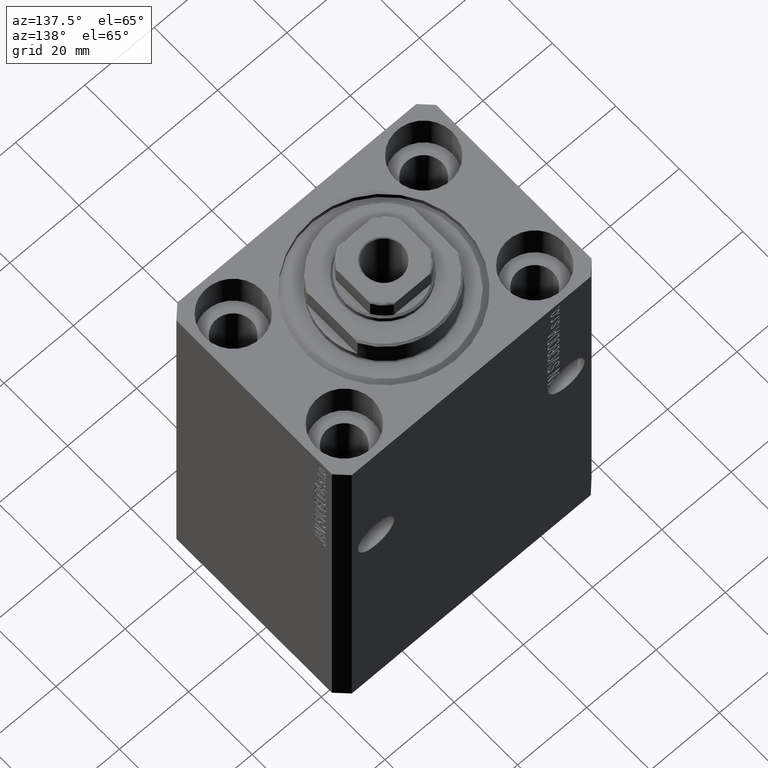
[diagram: clean part render]
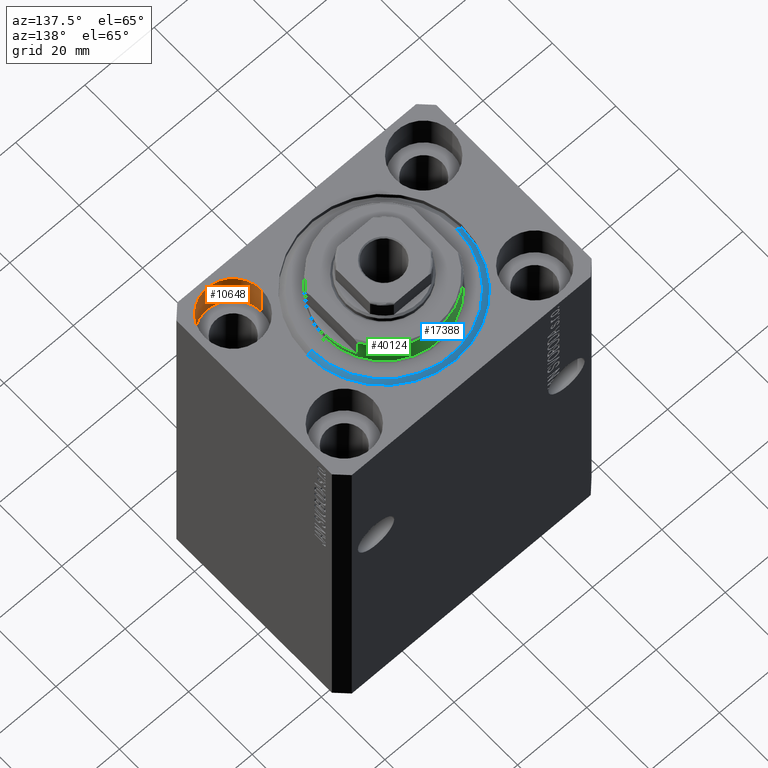
[diagram: same view with three faces highlighted in distinct colors, each labeled with its STEP entity id]
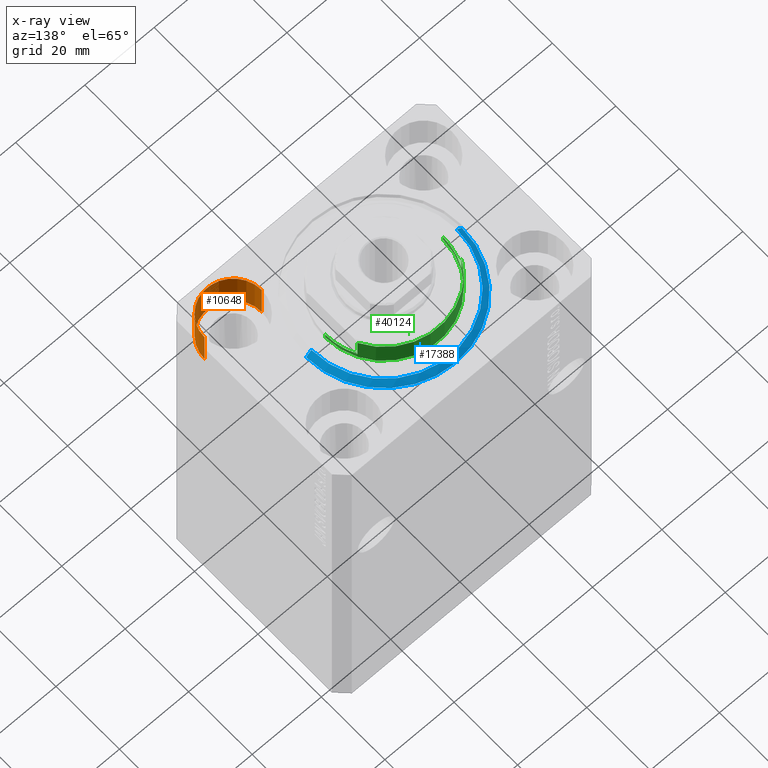
[diagram: x-ray of the same camera — body ghosted, the three highlighted faces saturated]
A machine part, auxiliary view with three faces highlighted in distinct colors.
The next image is the same camera in x-ray (body ghosted, the three faces saturated) — at least one of them is partly hidden behind the body in this view.
Their STEP definitions:

[orange] entity #10648 — the highlighted cylindrical surface (partial cylindrical patch) has radius 8.25 mm, axis along (0, 0, 1).
#373 = CARTESIAN_POINT ( 'NONE',  ( 27.50000000000000355, -17.50000000000000000, 0.000000000000000000 ) ) ;
#1655 = EDGE_CURVE ( 'NONE', #12537, #13945, #39522, .T. ) ;
#2427 = VECTOR ( 'NONE', #12998, 1000.000000000000000 ) ;
#4715 = CARTESIAN_POINT ( 'NONE',  ( 19.25000000000000000, -17.50000000000000000, 0.000000000000000000 ) ) ;
#5429 = DIRECTION ( 'NONE',  ( 1.000000000000000000, 0.000000000000000000, 0.000000000000000000 ) ) ;
#5968 = EDGE_CURVE ( 'NONE', #8845, #12537, #35969, .T. ) ;
#6167 = VERTEX_POINT ( 'NONE', #4715 ) ;
#6812 = CARTESIAN_POINT ( 'NONE',  ( 35.75000000000000711, -17.50000000000000000, 0.000000000000000000 ) ) ;
#6892 = CARTESIAN_POINT ( 'NONE',  ( 19.25000000000000000, -17.50000000000000000, -11.00000000000000000 ) ) ;
#7341 = LINE ( 'NONE', #6892, #24799 ) ;
#8845 = VERTEX_POINT ( 'NONE', #38775 ) ;
#10648 = ADVANCED_FACE ( 'NONE', ( #24062 ), #27413, .F. ) ;
#10656 = ORIENTED_EDGE ( 'NONE', *, *, #39236, .T. ) ;
#12195 = CIRCLE ( 'NONE', #37118, 8.250000000000000000 ) ;
#12537 = VERTEX_POINT ( 'NONE', #15558 ) ;
#12998 = DIRECTION ( 'NONE',  ( -0.000000000000000000, -0.000000000000000000, 1.000000000000000000 ) ) ;
#13945 = VERTEX_POINT ( 'NONE', #6812 ) ;
#15558 = CARTESIAN_POINT ( 'NONE',  ( 35.75000000000000711, -17.50000000000000000, -11.00000000000000000 ) ) ;
#15867 = ORIENTED_EDGE ( 'NONE', *, *, #5968, .F. ) ;
#16759 = AXIS2_PLACEMENT_3D ( 'NONE', #39293, #35958, #5429 ) ;
#17308 = EDGE_CURVE ( 'NONE', #8845, #6167, #7341, .T. ) ;
#23179 = AXIS2_PLACEMENT_3D ( 'NONE', #40977, #39790, #38304 ) ;
#24062 = FACE_OUTER_BOUND ( 'NONE', #38453, .T. ) ;
#24799 = VECTOR ( 'NONE', #43867, 1000.000000000000000 ) ;
#27356 = DIRECTION ( 'NONE',  ( 1.000000000000000000, 0.000000000000000000, 0.000000000000000000 ) ) ;
#27413 = CYLINDRICAL_SURFACE ( 'NONE', #23179, 8.250000000000000000 ) ;
#31754 = ORIENTED_EDGE ( 'NONE', *, *, #1655, .F. ) ;
#35958 = DIRECTION ( 'NONE',  ( 0.000000000000000000, 0.000000000000000000, 1.000000000000000000 ) ) ;
#35969 = CIRCLE ( 'NONE', #16759, 8.250000000000000000 ) ;
#37118 = AXIS2_PLACEMENT_3D ( 'NONE', #373, #41363, #27356 ) ;
#38304 = DIRECTION ( 'NONE',  ( 1.000000000000000000, 0.000000000000000000, 0.000000000000000000 ) ) ;
#38453 = EDGE_LOOP ( 'NONE', ( #15867, #43483, #10656, #31754 ) ) ;
#38775 = CARTESIAN_POINT ( 'NONE',  ( 19.25000000000000000, -17.50000000000000000, -11.00000000000000000 ) ) ;
#39236 = EDGE_CURVE ( 'NONE', #6167, #13945, #12195, .T. ) ;
#39293 = CARTESIAN_POINT ( 'NONE',  ( 27.50000000000000355, -17.50000000000000000, -11.00000000000000000 ) ) ;
#39522 = LINE ( 'NONE', #39965, #2427 ) ;
#39790 = DIRECTION ( 'NONE',  ( -0.000000000000000000, -0.000000000000000000, 1.000000000000000000 ) ) ;
#39965 = CARTESIAN_POINT ( 'NONE',  ( 35.75000000000000711, -17.50000000000000000, -11.00000000000000000 ) ) ;
#40977 = CARTESIAN_POINT ( 'NONE',  ( 27.50000000000000355, -17.50000000000000000, -11.00000000000000000 ) ) ;
#41363 = DIRECTION ( 'NONE',  ( 0.000000000000000000, 0.000000000000000000, 1.000000000000000000 ) ) ;
#43483 = ORIENTED_EDGE ( 'NONE', *, *, #17308, .T. ) ;
#43867 = DIRECTION ( 'NONE',  ( -0.000000000000000000, -0.000000000000000000, 1.000000000000000000 ) ) ;

[blue] entity #17388 — the highlighted conical surface has half-angle 45 deg.
#7040 = VERTEX_POINT ( 'NONE', #18853 ) ;
#7476 = DIRECTION ( 'NONE',  ( -0.000000000000000000, -0.000000000000000000, 1.000000000000000000 ) ) ;
#8439 = CONICAL_SURFACE ( 'NONE', #9880, 22.50000000000000355, 0.7853981633974517207 ) ;
#8962 = CIRCLE ( 'NONE', #33850, 20.99999999999995381 ) ;
#9880 = AXIS2_PLACEMENT_3D ( 'NONE', #32247, #14882, #21583 ) ;
#10158 = EDGE_CURVE ( 'NONE', #40332, #24697, #38843, .T. ) ;
#10390 = AXIS2_PLACEMENT_3D ( 'NONE', #13918, #7476, #21056 ) ;
#10825 = EDGE_CURVE ( 'NONE', #14719, #7040, #8962, .T. ) ;
#13656 = EDGE_LOOP ( 'NONE', ( #17242, #42951, #40784, #35019 ) ) ;
#13918 = CARTESIAN_POINT ( 'NONE',  ( 0.000000000000000000, 0.000000000000000000, 1.500000000000039524 ) ) ;
#14719 = VERTEX_POINT ( 'NONE', #29574 ) ;
#14882 = DIRECTION ( 'NONE',  ( -0.000000000000000000, -0.000000000000000000, 1.000000000000000000 ) ) ;
#17242 = ORIENTED_EDGE ( 'NONE', *, *, #10825, .F. ) ;
#17388 = ADVANCED_FACE ( 'NONE', ( #28928 ), #8439, .T. ) ;
#17944 = CARTESIAN_POINT ( 'NONE',  ( 0.000000000000000000, 0.000000000000000000, 0.000000000000000000 ) ) ;
#17969 = CARTESIAN_POINT ( 'NONE',  ( 22.50000000000000355, 2.755455298081544383E-15, 1.500000000000039524 ) ) ;
#18853 = CARTESIAN_POINT ( 'NONE',  ( 20.99999999999995381, 0.000000000000000000, 0.000000000000000000 ) ) ;
#21056 = DIRECTION ( 'NONE',  ( 1.000000000000000000, 0.000000000000000000, 0.000000000000000000 ) ) ;
#21583 = DIRECTION ( 'NONE',  ( 1.000000000000000000, 0.000000000000000000, 0.000000000000000000 ) ) ;
#22133 = VECTOR ( 'NONE', #39381, 1000.000000000000114 ) ;
#22232 = LINE ( 'NONE', #35604, #42688 ) ;
#24697 = VERTEX_POINT ( 'NONE', #34772 ) ;
#25809 = CARTESIAN_POINT ( 'NONE',  ( 22.50000000000000355, 0.000000000000000000, 1.500000000000039524 ) ) ;
#28927 = LINE ( 'NONE', #25809, #22133 ) ;
#28928 = FACE_OUTER_BOUND ( 'NONE', #13656, .T. ) ;
#29574 = CARTESIAN_POINT ( 'NONE',  ( -20.99999999999995381, 2.663606788145490261E-15, 0.000000000000000000 ) ) ;
#32247 = CARTESIAN_POINT ( 'NONE',  ( 0.000000000000000000, 0.000000000000000000, 1.500000000000039524 ) ) ;
#32522 = EDGE_CURVE ( 'NONE', #14719, #24697, #22232, .T. ) ;
#32918 = DIRECTION ( 'NONE',  ( -0.7071067811865500152, 8.659560562354962440E-17, 0.7071067811865451302 ) ) ;
#33850 = AXIS2_PLACEMENT_3D ( 'NONE', #17944, #38638, #34435 ) ;
#34435 = DIRECTION ( 'NONE',  ( 1.000000000000000000, 0.000000000000000000, 0.000000000000000000 ) ) ;
#34772 = CARTESIAN_POINT ( 'NONE',  ( -22.50000000000000355, 0.000000000000000000, 1.500000000000039524 ) ) ;
#35019 = ORIENTED_EDGE ( 'NONE', *, *, #38132, .F. ) ;
#35604 = CARTESIAN_POINT ( 'NONE',  ( -22.50000000000000355, 2.755455298081545172E-15, 1.500000000000039524 ) ) ;
#38132 = EDGE_CURVE ( 'NONE', #7040, #40332, #28927, .T. ) ;
#38638 = DIRECTION ( 'NONE',  ( -0.000000000000000000, -0.000000000000000000, -1.000000000000000000 ) ) ;
#38843 = CIRCLE ( 'NONE', #10390, 22.50000000000000355 ) ;
#39381 = DIRECTION ( 'NONE',  ( 0.7071067811865500152, 0.000000000000000000, 0.7071067811865451302 ) ) ;
#40332 = VERTEX_POINT ( 'NONE', #17969 ) ;
#40784 = ORIENTED_EDGE ( 'NONE', *, *, #10158, .F. ) ;
#42688 = VECTOR ( 'NONE', #32918, 1000.000000000000114 ) ;
#42951 = ORIENTED_EDGE ( 'NONE', *, *, #32522, .T. ) ;

[green] entity #40124 — the highlighted cylindrical surface (partial cylindrical patch) has radius 17 mm, axis along (0, 0, -1).
#99 = AXIS2_PLACEMENT_3D ( 'NONE', #25774, #15286, #29338 ) ;
#400 = VERTEX_POINT ( 'NONE', #41871 ) ;
#539 = CARTESIAN_POINT ( 'NONE',  ( -15.00000000000000000, 8.000000000000001776, -7.500000000000013323 ) ) ;
#916 = FACE_OUTER_BOUND ( 'NONE', #28595, .T. ) ;
#920 = VERTEX_POINT ( 'NONE', #40451 ) ;
#1377 = VECTOR ( 'NONE', #41481, 1000.000000000000000 ) ;
#1797 = CARTESIAN_POINT ( 'NONE',  ( -17.00000000000000000, 2.081899558550500280E-15, -2.000000000000000000 ) ) ;
#3306 = VECTOR ( 'NONE', #40277, 1000.000000000000000 ) ;
#3353 = DIRECTION ( 'NONE',  ( 0.000000000000000000, 0.000000000000000000, 1.000000000000000000 ) ) ;
#6105 = AXIS2_PLACEMENT_3D ( 'NONE', #8214, #42282, #11763 ) ;
#6693 = CARTESIAN_POINT ( 'NONE',  ( 17.00000000000000000, 0.000000000000000000, -0.5000000000000004441 ) ) ;
#6710 = ORIENTED_EDGE ( 'NONE', *, *, #30021, .F. ) ;
#8214 = CARTESIAN_POINT ( 'NONE',  ( 0.000000000000000000, 0.000000000000000000, -2.000000000000000000 ) ) ;
#9227 = EDGE_CURVE ( 'NONE', #400, #15951, #14712, .T. ) ;
#9936 = ORIENTED_EDGE ( 'NONE', *, *, #9227, .F. ) ;
#11281 = AXIS2_PLACEMENT_3D ( 'NONE', #20087, #3353, #20744 ) ;
#11763 = DIRECTION ( 'NONE',  ( -1.000000000000000000, 0.000000000000000000, 0.000000000000000000 ) ) ;
#12502 = EDGE_CURVE ( 'NONE', #14764, #400, #39168, .T. ) ;
#13103 = CARTESIAN_POINT ( 'NONE',  ( -15.00000000000000000, 8.000000000000001776, -8.000000000000000000 ) ) ;
#13533 = EDGE_CURVE ( 'NONE', #27844, #15928, #27153, .T. ) ;
#14399 = CIRCLE ( 'NONE', #36446, 17.00000000000000000 ) ;
#14712 = CIRCLE ( 'NONE', #6105, 17.00000000000000000 ) ;
#14764 = VERTEX_POINT ( 'NONE', #19312 ) ;
#15286 = DIRECTION ( 'NONE',  ( 0.000000000000000000, 0.000000000000000000, -1.000000000000000000 ) ) ;
#15542 = ORIENTED_EDGE ( 'NONE', *, *, #18117, .T. ) ;
#15928 = VERTEX_POINT ( 'NONE', #24089 ) ;
#15951 = VERTEX_POINT ( 'NONE', #20526 ) ;
#18117 = EDGE_CURVE ( 'NONE', #14764, #27844, #41155, .T. ) ;
#18293 = CYLINDRICAL_SURFACE ( 'NONE', #31459, 17.00000000000000000 ) ;
#19312 = CARTESIAN_POINT ( 'NONE',  ( 15.00000000000000000, 8.000000000000001776, -7.500000000000013323 ) ) ;
#19902 = EDGE_CURVE ( 'NONE', #33272, #920, #34813, .T. ) ;
#20087 = CARTESIAN_POINT ( 'NONE',  ( 0.000000000000000000, 0.000000000000000000, -7.500000000000013323 ) ) ;
#20526 = CARTESIAN_POINT ( 'NONE',  ( 17.00000000000000000, 0.000000000000000000, -2.000000000000000000 ) ) ;
#20681 = ORIENTED_EDGE ( 'NONE', *, *, #12502, .F. ) ;
#20744 = DIRECTION ( 'NONE',  ( -1.000000000000000000, 0.000000000000000000, 0.000000000000000000 ) ) ;
#21844 = DIRECTION ( 'NONE',  ( -0.000000000000000000, -0.000000000000000000, 1.000000000000000000 ) ) ;
#23133 = LINE ( 'NONE', #40703, #27126 ) ;
#23884 = CARTESIAN_POINT ( 'NONE',  ( 0.000000000000000000, 0.000000000000000000, -0.5000000000000004441 ) ) ;
#24089 = CARTESIAN_POINT ( 'NONE',  ( -14.99999999999999645, 8.000000000000003553, -2.000000000000000000 ) ) ;
#25602 = CARTESIAN_POINT ( 'NONE',  ( 15.00000000000000000, 8.000000000000001776, -8.000000000000000000 ) ) ;
#25774 = CARTESIAN_POINT ( 'NONE',  ( 0.000000000000000000, 0.000000000000000000, -2.000000000000000000 ) ) ;
#26014 = ORIENTED_EDGE ( 'NONE', *, *, #28752, .F. ) ;
#27126 = VECTOR ( 'NONE', #36716, 1000.000000000000000 ) ;
#27153 = LINE ( 'NONE', #13103, #3306 ) ;
#27455 = DIRECTION ( 'NONE',  ( 1.000000000000000000, 0.000000000000000000, 0.000000000000000000 ) ) ;
#27844 = VERTEX_POINT ( 'NONE', #539 ) ;
#28595 = EDGE_LOOP ( 'NONE', ( #6710, #34837, #36670, #26014, #9936, #20681, #15542, #35537 ) ) ;
#28752 = EDGE_CURVE ( 'NONE', #15951, #30453, #23133, .T. ) ;
#29338 = DIRECTION ( 'NONE',  ( -1.000000000000000000, 0.000000000000000000, 0.000000000000000000 ) ) ;
#30021 = EDGE_CURVE ( 'NONE', #33272, #15928, #32833, .T. ) ;
#30453 = VERTEX_POINT ( 'NONE', #6693 ) ;
#30793 = DIRECTION ( 'NONE',  ( -0.000000000000000000, -0.000000000000000000, -1.000000000000000000 ) ) ;
#31459 = AXIS2_PLACEMENT_3D ( 'NONE', #31869, #21844, #32080 ) ;
#31470 = CARTESIAN_POINT ( 'NONE',  ( -17.00000000000000000, 2.081899558550500280E-15, -8.000000000000000000 ) ) ;
#31869 = CARTESIAN_POINT ( 'NONE',  ( 0.000000000000000000, 0.000000000000000000, -8.000000000000000000 ) ) ;
#32080 = DIRECTION ( 'NONE',  ( 1.000000000000000000, 0.000000000000000000, 0.000000000000000000 ) ) ;
#32833 = CIRCLE ( 'NONE', #99, 17.00000000000000000 ) ;
#32929 = DIRECTION ( 'NONE',  ( -0.000000000000000000, -0.000000000000000000, 1.000000000000000000 ) ) ;
#33272 = VERTEX_POINT ( 'NONE', #1797 ) ;
#34813 = LINE ( 'NONE', #31470, #1377 ) ;
#34837 = ORIENTED_EDGE ( 'NONE', *, *, #19902, .T. ) ;
#35537 = ORIENTED_EDGE ( 'NONE', *, *, #13533, .T. ) ;
#36446 = AXIS2_PLACEMENT_3D ( 'NONE', #23884, #30793, #27455 ) ;
#36670 = ORIENTED_EDGE ( 'NONE', *, *, #41056, .T. ) ;
#36716 = DIRECTION ( 'NONE',  ( -0.000000000000000000, -0.000000000000000000, 1.000000000000000000 ) ) ;
#38188 = VECTOR ( 'NONE', #32929, 1000.000000000000000 ) ;
#39168 = LINE ( 'NONE', #25602, #38188 ) ;
#40124 = ADVANCED_FACE ( 'NONE', ( #916 ), #18293, .T. ) ;
#40277 = DIRECTION ( 'NONE',  ( -0.000000000000000000, -0.000000000000000000, 1.000000000000000000 ) ) ;
#40451 = CARTESIAN_POINT ( 'NONE',  ( -17.00000000000000000, 2.081899558550500280E-15, -0.5000000000000004441 ) ) ;
#40703 = CARTESIAN_POINT ( 'NONE',  ( 17.00000000000000000, 0.000000000000000000, -8.000000000000000000 ) ) ;
#41056 = EDGE_CURVE ( 'NONE', #920, #30453, #14399, .T. ) ;
#41155 = CIRCLE ( 'NONE', #11281, 17.00000000000000000 ) ;
#41481 = DIRECTION ( 'NONE',  ( -0.000000000000000000, -0.000000000000000000, 1.000000000000000000 ) ) ;
#41871 = CARTESIAN_POINT ( 'NONE',  ( 14.99999999999999645, 8.000000000000003553, -2.000000000000000000 ) ) ;
#42282 = DIRECTION ( 'NONE',  ( 0.000000000000000000, 0.000000000000000000, -1.000000000000000000 ) ) ;